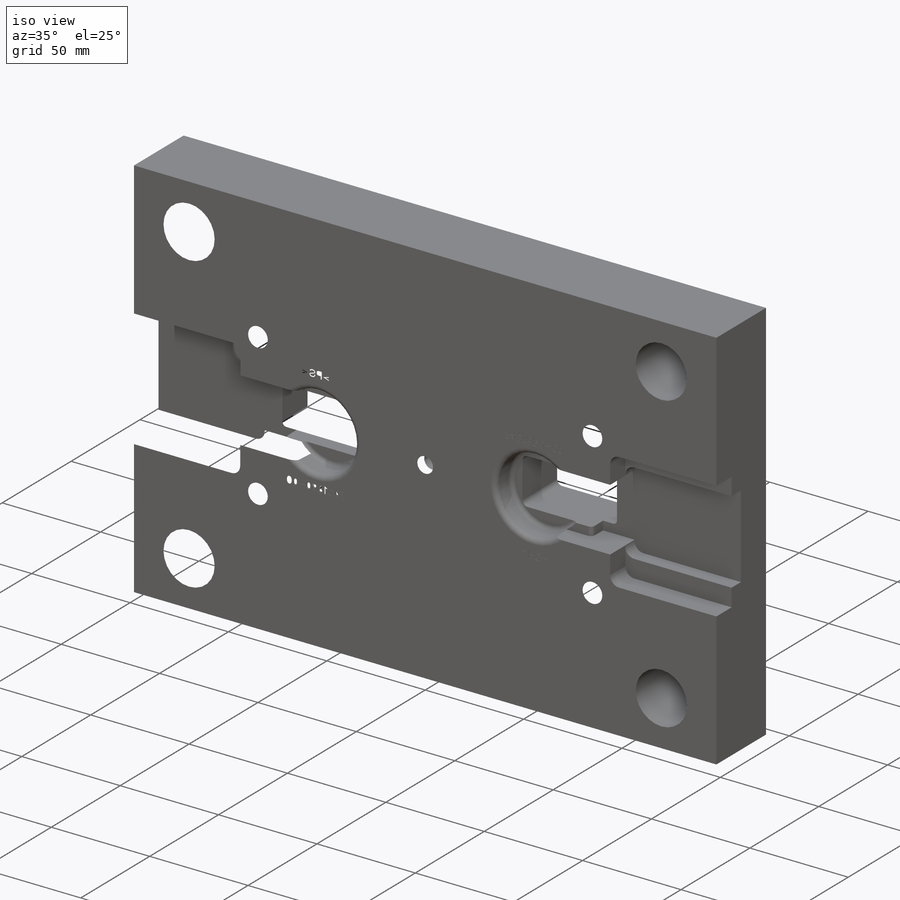
[diagram: iso view]
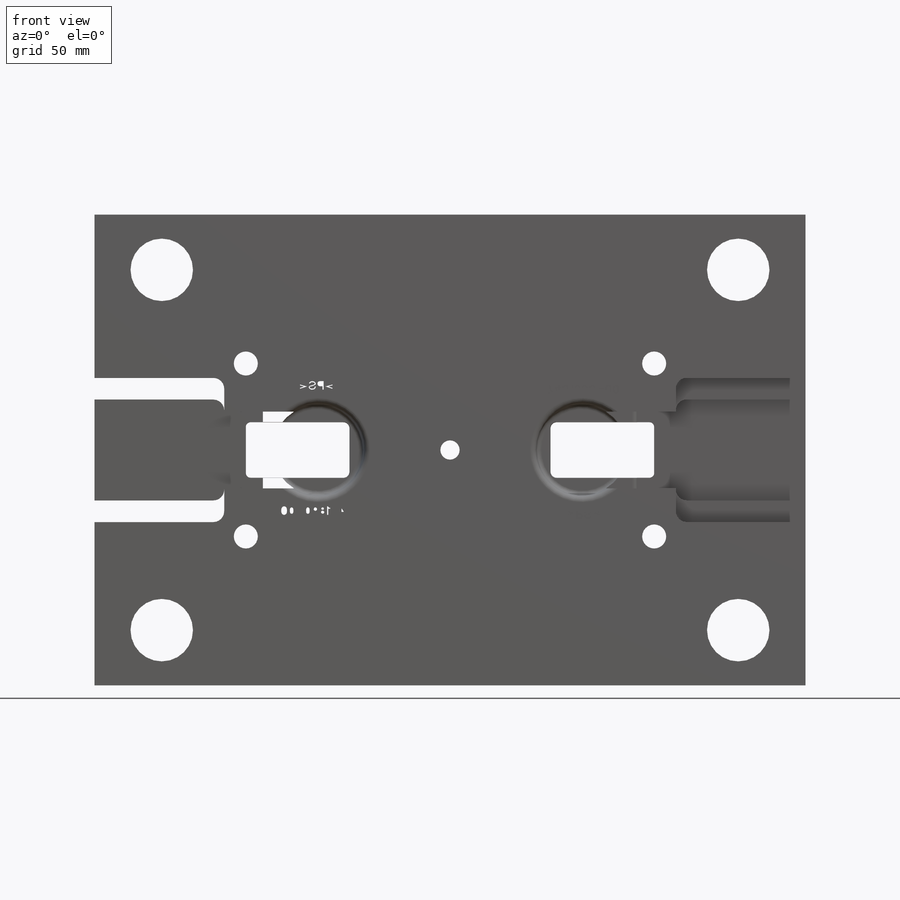
[diagram: front view]
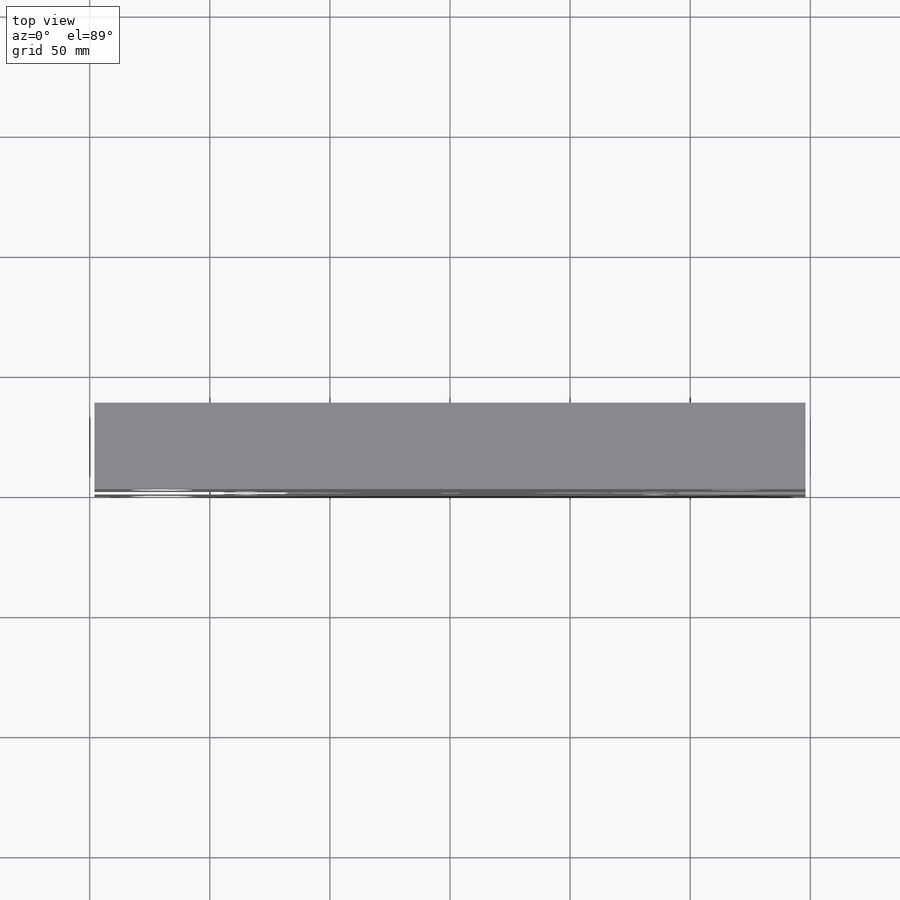
[diagram: top view]
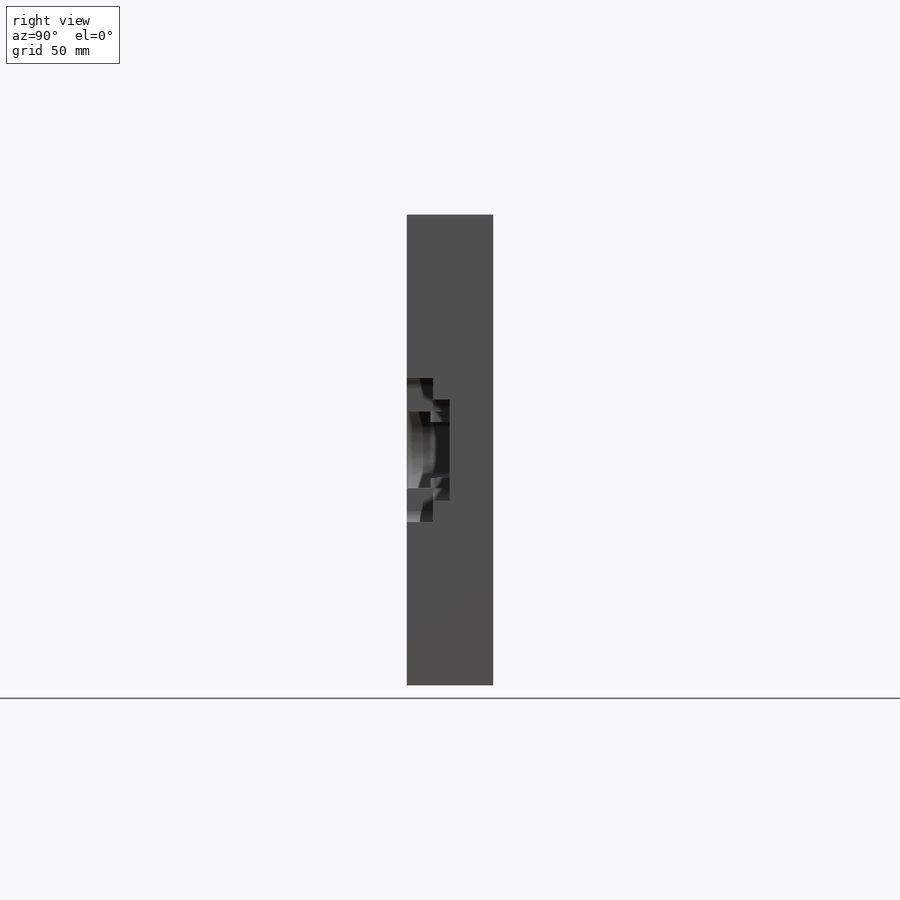
[diagram: right view]
SOLIDWORKS PART (.sldprt)
format: sldprt  version: not decoded by parser v0  size: 4,511,744 bytes
history: native  units: mm
features: sketch x15, cut_extrude x8, hole x3, fillet x2, material x1, extrude x1, pattern_circular x1, boolean_combine x1 (+11 scaffold rows collapsed)
feature tree (43):
  scaffold x11  (default folders/planes/origin — collapsed)
  material  "Материал <не указан>"
  sketch  "Sketch1"  dims[D1=196.0mm D2=148.0mm]
  extrude  "Extrude1"  Depth=36mm
  sketch  "Sketch2"
  cut_extrude  "Extrude2"  [1 undecoded]
  sketch  "Sketch5"  dims[D1=2.0mm D2=2.55mm D3=85.0mm]
  cut_extrude  "Extrude5"  [1 undecoded]
  sketch  "Sketch3"  dims[D1=32.0mm D2=~0.04314mm]
  cut_extrude  "Extrude3"  [1 undecoded]
  sketch  "Sketch6"  dims[c1.D1=100.0mm c1.D2=60.0mm c2.D1=54.0mm]
  cut_extrude  "Extrude6"  Depth=11mm
  sketch  "Sketch12"
  cut_extrude  "Extrude7"  Depth=20mm
  sketch  "Sketch13"  dims[c1.D1=4.5225mm c2.D1=1.0deg c3.D1=10.0mm]
  cut_extrude  "Extrude8"  [1 undecoded]
  fillet  "Fillet2"  Radius=2mm
  sketch  "Sketch14"  dims[D1=42.0mm D2=5.0mm]
  cut_extrude  "Extrude9"  [1 undecoded]
  fillet  "Fillet1"  Radius=4.5mm
  hole  "CBORE for 20 mm Guide Bushing1"  [1 undecoded]
  sketch  "Sketch8"  dims[D1=240.0mm D2=150.0mm]
  sketch  "Sketch7"  dims[hole-wizard template sketch: 41 standard entries collapsed; hole parameters kept: c12.Диаметр сквозного отверстия=26.0mm c12.Глубина сквозного отверстия=~36.32431mm c12.Диаметр цековки=32.0mm c12.Глубина цековки=6.1mm]
  pattern_circular  "CirPattern2"  Count=2 Angle=360deg
  boolean_combine  "Combine2"
  hole  "CBORE for 8 mm Core Pins1"  [1 undecoded]
  sketch  "Sketch11"
  sketch  "Sketch10"  dims[hole-wizard template sketch: 41 standard entries collapsed; hole parameters kept: c12.Диаметр сквозного отверстия=8.0mm c12.Глубина сквозного отверстия=~36.32431mm c12.Диаметр цековки=9.0mm c12.Глубина цековки=16.0mm]
  hole  "CBORE for 10 mm Core Pins1"  [1 undecoded]
  sketch  "Sketch16"  dims[D1=85.0mm D2=36.0mm]
  sketch  "Sketch15"  dims[hole-wizard template sketch: 41 standard entries collapsed; hole parameters kept: c12.Диаметр сквозного отверстия=10.0mm c12.Глубина сквозного отверстия=~36.32431mm c12.Диаметр цековки=11.0mm c12.Глубина цековки=18.0mm]
  sketch  "Sketch17"  dims[D1=8.0mm]
  cut_extrude  "Extrude10"  Depth=5mm
decode coverage: 19 of 31 modeling features carry decoded parameters
note: ~ marks probable driven/reference dimensions
note: 8 parameter values undecoded
summary: no parameter record found for 8 features
note: suppression state not decoded; provenance and decode notes live in map.json
